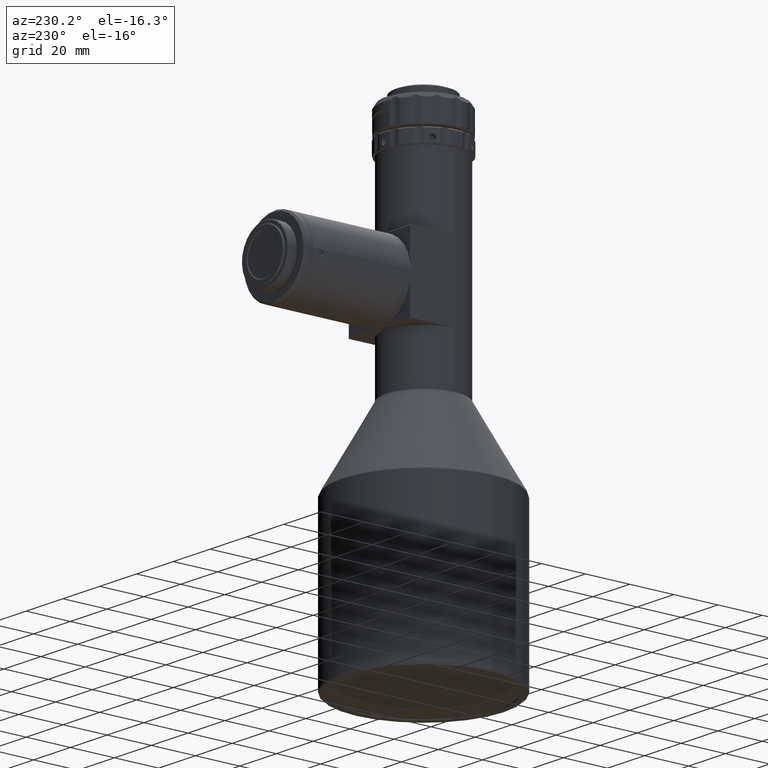
[diagram: clean part render]
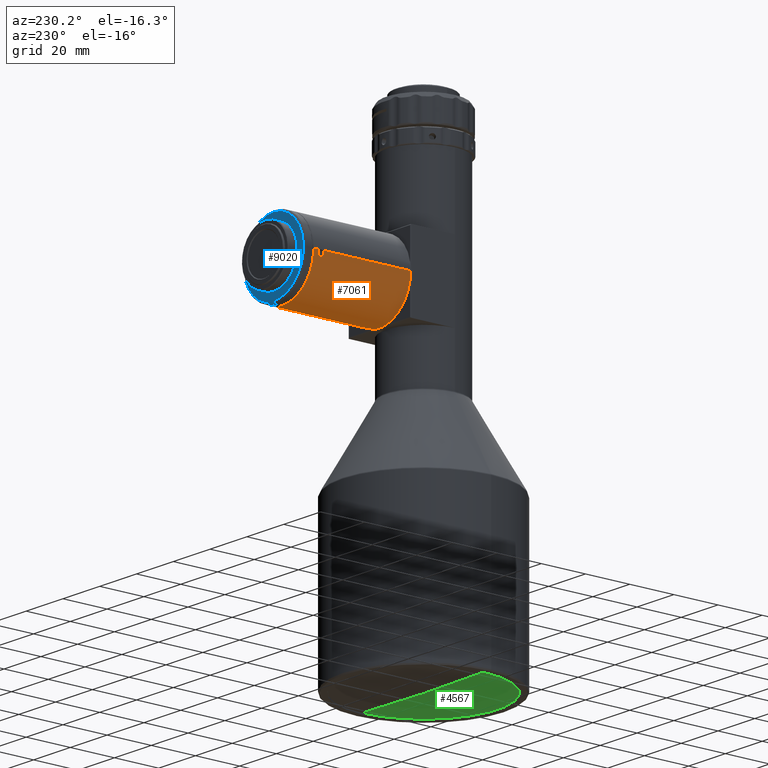
[diagram: same view with three faces highlighted in distinct colors, each labeled with its STEP entity id]
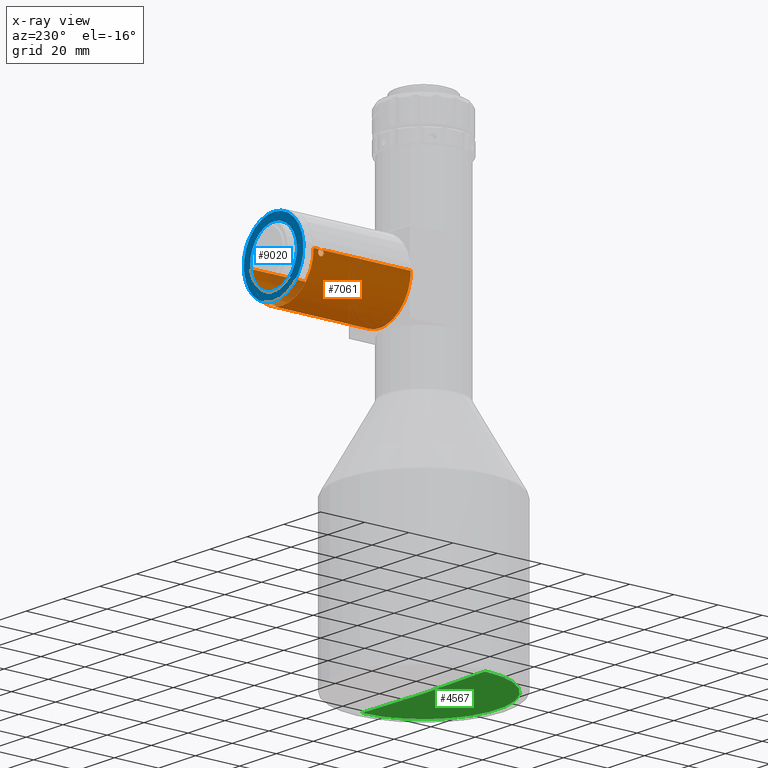
[diagram: x-ray of the same camera — body ghosted, the three highlighted faces saturated]
A machine part, auxiliary view with three faces highlighted in distinct colors.
The next image is the same camera in x-ray (body ghosted, the three faces saturated) — at least one of them is partly hidden behind the body in this view.
Their STEP definitions:

[orange] entity #7061 — the highlighted cylindrical surface (partial cylindrical patch) has radius 17 mm, axis along (-0, -1, -0).
#30 = EDGE_CURVE ( 'NONE', #10299, #2019, #9562, .T. ) ;
#130 = EDGE_CURVE ( 'NONE', #3098, #3145, #10265, .T. ) ;
#163 = CARTESIAN_POINT ( 'NONE',  ( 10.44409753742035600, 60.78860163635985700, 19.51785157957408100 ) ) ;
#166 = ORIENTED_EDGE ( 'NONE', *, *, #9727, .T. ) ;
#220 = CARTESIAN_POINT ( 'NONE',  ( -16.83844321671515200, 60.90231619861911800, 30.59318317727059600 ) ) ;
#673 = CARTESIAN_POINT ( 'NONE',  ( 16.69999999999987100, 20.00000000000028800, 29.75168588359415300 ) ) ;
#755 = B_SPLINE_CURVE_WITH_KNOTS ( 'NONE', 3,
 ( #10082, #2800, #10958, #5631, #1241, #7472, #3029, #3890, #4814, #9230, #2996, #3968, #1358, #10115, #1392, #8337, #1280, #4040, #11036, #10227 ),
 .UNSPECIFIED., .F., .F.,
 ( 4, 2, 2, 2, 2, 2, 2, 2, 2, 4 ),
 ( 0.0000000000000000000, 0.0004886735322580820300, 0.0009773470645161640500, 0.001466020596774246100, 0.001954694129032328100, 0.002443367661290410100, 0.002932041193548492200, 0.003420714725806574200, 0.003665051491935606300, 0.003909388258064638900 ),
 .UNSPECIFIED. ) ;
#864 = CIRCLE ( 'NONE', #3635, 17.00000000000000000 ) ;
#1011 = DIRECTION ( 'NONE',  ( -1.227316859253525200E-016, -1.000000000000000000, -5.319949245483733800E-016 ) ) ;
#1097 = AXIS2_PLACEMENT_3D ( 'NONE', #1327, #8538, #4895 ) ;
#1100 = CARTESIAN_POINT ( 'NONE',  ( -17.00000000000018500, 61.47123799721796900, 32.79792857929201200 ) ) ;
#1178 = EDGE_CURVE ( 'NONE', #11497, #6519, #5920, .T. ) ;
#1202 = CARTESIAN_POINT ( 'NONE',  ( 8.363936404921442900, 60.62544900000001700, 18.13115418546042800 ) ) ;
#1219 = CARTESIAN_POINT ( 'NONE',  ( -16.99831671278808200, 61.66481651704216900, 32.58371411275661700 ) ) ;
#1241 = CARTESIAN_POINT ( 'NONE',  ( 8.582206032756294800, 59.85666945905273900, 18.25619104719068300 ) ) ;
#1278 = CARTESIAN_POINT ( 'NONE',  ( 8.501658297077971900, 61.25544258454164700, 18.20970102550501600 ) ) ;
#1280 = CARTESIAN_POINT ( 'NONE',  ( 10.41231225476375100, 60.30075011707619100, 19.49315348209614000 ) ) ;
#1316 = CARTESIAN_POINT ( 'NONE',  ( 10.24521593220291900, 61.39340508350832700, 19.36484815966855800 ) ) ;
#1327 = CARTESIAN_POINT ( 'NONE',  ( -1.624694592395075500E-013, 11.00000000000029700, 32.93130850271084900 ) ) ;
#1358 = CARTESIAN_POINT ( 'NONE',  ( 10.05834016019300800, 59.62470758801497800, 19.22570905946440300 ) ) ;
#1392 = CARTESIAN_POINT ( 'NONE',  ( 10.31883841723742100, 59.99563988277061100, 19.42110763284640400 ) ) ;
#1397 = EDGE_CURVE ( 'NONE', #9168, #3098, #1462, .T. ) ;
#1410 = CARTESIAN_POINT ( 'NONE',  ( -1.613648740661793200E-013, 20.00000000000029500, 32.93130850271085600 ) ) ;
#1462 = CIRCLE ( 'NONE', #10208, 17.00000000000000000 ) ;
#1466 = VERTEX_POINT ( 'NONE', #4059 ) ;
#1534 = B_SPLINE_CURVE_WITH_KNOTS ( 'NONE', 3,
 ( #11310, #6950, #3383, #1619, #4204, #9606, #10461, #9542, #6994, #8651 ),
 .UNSPECIFIED., .F., .F.,
 ( 4, 2, 2, 2, 4 ),
 ( 0.002583457577589026000, 0.003403748879475404700, 0.004224040181361783300, 0.005044331483248162000, 0.005864622785134540600 ),
 .UNSPECIFIED. ) ;
#1619 = CARTESIAN_POINT ( 'NONE',  ( -16.98046161540724700, 59.36829357606198700, 32.07803068651396200 ) ) ;
#1657 = DIRECTION ( 'NONE',  ( 0.06433384176585757500, 8.163404592832026100E-016, -0.9979284327062966100 ) ) ;
#2019 = VERTEX_POINT ( 'NONE', #9785 ) ;
#2091 = CARTESIAN_POINT ( 'NONE',  ( 10.41822450364994300, 60.95306959857011000, 19.49760115184764300 ) ) ;
#2107 = CARTESIAN_POINT ( 'NONE',  ( -16.83844321671515200, 60.62544900000001000, 30.59318317727059600 ) ) ;
#2129 = CARTESIAN_POINT ( 'NONE',  ( 8.786787601780332600, 61.62029975530740700, 18.37806197782103400 ) ) ;
#2241 = CARTESIAN_POINT ( 'NONE',  ( 10.31931013224922100, 61.25393631298310700, 19.42147011020788800 ) ) ;
#2379 = DIRECTION ( 'NONE',  ( -1.000000000000000000, 2.040851148208008200E-016, 2.857191607491211600E-015 ) ) ;
#2523 = CARTESIAN_POINT ( 'NONE',  ( -17.00000000000016700, 61.23073762227321000, 32.93130850271097600 ) ) ;
#2565 = CYLINDRICAL_SURFACE ( 'NONE', #1097, 17.00000000000000000 ) ;
#2718 = EDGE_CURVE ( 'NONE', #8670, #10299, #4839, .T. ) ;
#2800 = CARTESIAN_POINT ( 'NONE',  ( 8.363936404921442900, 60.46020817463755700, 18.13115418546043100 ) ) ;
#2829 = CARTESIAN_POINT ( 'NONE',  ( -17.00000000000016300, 11.00000000000029800, 32.93130850271089800 ) ) ;
#2958 = ORIENTED_EDGE ( 'NONE', *, *, #8351, .F. ) ;
#2996 = CARTESIAN_POINT ( 'NONE',  ( 9.699887648661720300, 59.40778587403193000, 18.96939198114419200 ) ) ;
#3007 = CARTESIAN_POINT ( 'NONE',  ( -16.85178776744311300, 61.17214327417089900, 30.68500241880037600 ) ) ;
#3029 = CARTESIAN_POINT ( 'NONE',  ( 8.900113832779265300, 59.53301496947038600, 18.44646749811139600 ) ) ;
#3064 = CARTESIAN_POINT ( 'NONE',  ( 8.582530785604328500, 61.39472236956846300, 18.25638033360427700 ) ) ;
#3098 = VERTEX_POINT ( 'NONE', #673 ) ;
#3120 = AXIS2_PLACEMENT_3D ( 'NONE', #6949, #10614, #1657 ) ;
#3145 = VERTEX_POINT ( 'NONE', #6005 ) ;
#3305 = ORIENTED_EDGE ( 'NONE', *, *, #8419, .T. ) ;
#3383 = CARTESIAN_POINT ( 'NONE',  ( -16.99834556377100400, 59.58620168085504800, 32.58431023389746900 ) ) ;
#3403 = FACE_BOUND ( 'NONE', #10827, .T. ) ;
#3447 = CARTESIAN_POINT ( 'NONE',  ( -17.00000000000016700, 60.02016037772669000, 32.93130850271089800 ) ) ;
#3575 = ORIENTED_EDGE ( 'NONE', *, *, #30, .F. ) ;
#3588 = EDGE_CURVE ( 'NONE', #4987, #3145, #6143, .T. ) ;
#3635 = AXIS2_PLACEMENT_3D ( 'NONE', #5517, #1011, #7272 ) ;
#3685 = ORIENTED_EDGE ( 'NONE', *, *, #6839, .T. ) ;
#3740 = DIRECTION ( 'NONE',  ( -1.000000000000000000, 2.040851148208008200E-016, 2.857191607491211600E-015 ) ) ;
#3888 = CARTESIAN_POINT ( 'NONE',  ( 9.701335024671356800, 61.84262286287446400, 18.97039968294829400 ) ) ;
#3890 = CARTESIAN_POINT ( 'NONE',  ( 9.155137178339819200, 59.40834196863500000, 18.60629162974576200 ) ) ;
#3922 = CARTESIAN_POINT ( 'NONE',  ( 9.156701845015401600, 61.84320697637160400, 18.60728014417492200 ) ) ;
#3968 = CARTESIAN_POINT ( 'NONE',  ( 9.947076741225506800, 59.53306046697227300, 19.14440900876998300 ) ) ;
#4040 = CARTESIAN_POINT ( 'NONE',  ( 10.43763097426615600, 60.46097907084376300, 19.51280946243754900 ) ) ;
#4059 = CARTESIAN_POINT ( 'NONE',  ( -16.83844321671515200, 60.62544900000001000, 30.59318317727059600 ) ) ;
#4204 = CARTESIAN_POINT ( 'NONE',  ( -16.96391710131068500, 59.34607776056383000, 31.79240683571985600 ) ) ;
#4329 = ORIENTED_EDGE ( 'NONE', *, *, #7138, .T. ) ;
#4364 = CARTESIAN_POINT ( 'NONE',  ( -1.613648740661793200E-013, 20.00000000000029500, 32.93130850271085600 ) ) ;
#4428 = VERTEX_POINT ( 'NONE', #8976 ) ;
#4715 = CARTESIAN_POINT ( 'NONE',  ( -16.96270775978055700, 61.88231563095511200, 31.79761879208986000 ) ) ;
#4787 = EDGE_CURVE ( 'NONE', #6398, #9168, #8945, .T. ) ;
#4811 = CARTESIAN_POINT ( 'NONE',  ( 8.363936404921441100, 60.79065173880533700, 18.13115418546042100 ) ) ;
#4814 = CARTESIAN_POINT ( 'NONE',  ( 9.293440137676880000, 59.37550762309951600, 18.69548823870270800 ) ) ;
#4839 = LINE ( 'NONE', #2829, #8206 ) ;
#4887 = ORIENTED_EDGE ( 'NONE', *, *, #2718, .F. ) ;
#4895 = DIRECTION ( 'NONE',  ( -1.000000000000000000, 1.020425574104004100E-016, 2.857191607491211600E-015 ) ) ;
#4987 = VERTEX_POINT ( 'NONE', #5834 ) ;
#5069 = CIRCLE ( 'NONE', #11443, 17.00000000000001400 ) ;
#5166 = EDGE_LOOP ( 'NONE', ( #10485, #10846, #6502, #7658, #7546, #2958, #3575, #4887, #4329, #9991, #6160, #3685 ) ) ;
#5186 = DIRECTION ( 'NONE',  ( -1.227316859253475900E-016, -1.000000000000000000, -5.319949245483742700E-016 ) ) ;
#5206 = DIRECTION ( 'NONE',  ( -1.227316859253525200E-016, -1.000000000000000000, -5.319949245483733800E-016 ) ) ;
#5267 = DIRECTION ( 'NONE',  ( -1.227316859253525200E-016, -1.000000000000000000, -5.319949245483733800E-016 ) ) ;
#5347 = CARTESIAN_POINT ( 'NONE',  ( 10.44409753742687200, 60.62544899999952000, 19.51785157957915500 ) ) ;
#5373 = DIRECTION ( 'NONE',  ( -1.227316859253525200E-016, -1.000000000000000000, -5.319949245483733800E-016 ) ) ;
#5470 = CARTESIAN_POINT ( 'NONE',  ( 10.44409753742687200, 60.62544899999952000, 19.51785157957915500 ) ) ;
#5482 = FACE_OUTER_BOUND ( 'NONE', #5166, .T. ) ;
#5517 = CARTESIAN_POINT ( 'NONE',  ( -1.613648740661793200E-013, 20.00000000000029500, 32.93130850271085600 ) ) ;
#5627 = CARTESIAN_POINT ( 'NONE',  ( 8.731546721219636700, 61.56756811586392100, 18.34489599933200700 ) ) ;
#5631 = CARTESIAN_POINT ( 'NONE',  ( 8.501591194862584200, 59.99531131273245400, 18.20966101143116200 ) ) ;
#5834 = CARTESIAN_POINT ( 'NONE',  ( 16.99999999999982900, 63.92544900000000800, 32.93130850271082700 ) ) ;
#5920 = LINE ( 'NONE', #7371, #9153 ) ;
#6005 = CARTESIAN_POINT ( 'NONE',  ( 16.99999999999983700, 20.00000000000029100, 32.93130850271082700 ) ) ;
#6143 = LINE ( 'NONE', #8035, #8534 ) ;
#6160 = ORIENTED_EDGE ( 'NONE', *, *, #1178, .F. ) ;
#6211 = VERTEX_POINT ( 'NONE', #11476 ) ;
#6250 = AXIS2_PLACEMENT_3D ( 'NONE', #8860, #5206, #10621 ) ;
#6387 = EDGE_CURVE ( 'NONE', #1466, #6519, #8051, .T. ) ;
#6393 = DIRECTION ( 'NONE',  ( -1.227316859253525200E-016, -1.000000000000000000, -5.319949245483733800E-016 ) ) ;
#6398 = VERTEX_POINT ( 'NONE', #10857 ) ;
#6502 = ORIENTED_EDGE ( 'NONE', *, *, #130, .F. ) ;
#6519 = VERTEX_POINT ( 'NONE', #2523 ) ;
#6529 = CARTESIAN_POINT ( 'NONE',  ( 10.06024531682138200, 61.62402807601709000, 19.22712082513662300 ) ) ;
#6839 = EDGE_CURVE ( 'NONE', #11497, #4428, #5069, .T. ) ;
#6875 = AXIS2_PLACEMENT_3D ( 'NONE', #7178, #5267, #10720 ) ;
#6905 = VERTEX_POINT ( 'NONE', #5347 ) ;
#6949 = CARTESIAN_POINT ( 'NONE',  ( -1.697352264374592000E-013, 63.92544900000000800, 32.93130850271087700 ) ) ;
#6950 = CARTESIAN_POINT ( 'NONE',  ( -17.00000000000016700, 59.77946406609437700, 32.79781991409588200 ) ) ;
#6980 = DIRECTION ( 'NONE',  ( 0.06433384176585757500, 8.163404592832026100E-016, -0.9979284327062966100 ) ) ;
#6994 = CARTESIAN_POINT ( 'NONE',  ( -16.83844321671514900, 60.34837738146897800, 30.59318317727060000 ) ) ;
#7061 = ADVANCED_FACE ( 'NONE', ( #3403, #5482 ), #2565, .T. ) ;
#7138 = EDGE_CURVE ( 'NONE', #8670, #1466, #1534, .T. ) ;
#7178 = CARTESIAN_POINT ( 'NONE',  ( -1.613648740661793200E-013, 20.00000000000029500, 32.93130850271085600 ) ) ;
#7220 = DIRECTION ( 'NONE',  ( -1.227316859253525200E-016, -1.000000000000000000, -5.319949245483733800E-016 ) ) ;
#7272 = DIRECTION ( 'NONE',  ( -1.000000000000000000, 2.040851148208008200E-016, 2.857191607491211600E-015 ) ) ;
#7371 = CARTESIAN_POINT ( 'NONE',  ( -17.00000000000016300, 11.00000000000029800, 32.93130850271089800 ) ) ;
#7472 = CARTESIAN_POINT ( 'NONE',  ( 8.780757687044138400, 59.62613269018810100, 18.37412377614348800 ) ) ;
#7501 = CARTESIAN_POINT ( 'NONE',  ( 8.902890104129959100, 61.71084259583320600, 18.44879599393658500 ) ) ;
#7546 = ORIENTED_EDGE ( 'NONE', *, *, #4787, .F. ) ;
#7658 = ORIENTED_EDGE ( 'NONE', *, *, #1397, .F. ) ;
#7669 = AXIS2_PLACEMENT_3D ( 'NONE', #4364, #10774, #3740 ) ;
#8035 = CARTESIAN_POINT ( 'NONE',  ( 16.99999999999983700, 11.00000000000029500, 32.93130850271080600 ) ) ;
#8051 = B_SPLINE_CURVE_WITH_KNOTS ( 'NONE', 3,
 ( #2107, #220, #3007, #9244, #10126, #9102, #4715, #8200, #10932, #1219, #1100, #9212 ),
 .UNSPECIFIED., .F., .F.,
 ( 4, 2, 2, 2, 2, 4 ),
 ( 0.005864622785134540600, 0.006684308886543948400, 0.007503994987953356200, 0.007913838038658048400, 0.008323681089362738900, 0.009143367190772140600 ),
 .UNSPECIFIED. ) ;
#8200 = CARTESIAN_POINT ( 'NONE',  ( -16.97875289572039000, 61.86108951075983200, 32.07069418156935800 ) ) ;
#8206 = VECTOR ( 'NONE', #7220, 1000.000000000000000 ) ;
#8337 = CARTESIAN_POINT ( 'NONE',  ( 10.39358275257777600, 60.22281953436888100, 19.47863493863445700 ) ) ;
#8351 = EDGE_CURVE ( 'NONE', #2019, #6398, #864, .T. ) ;
#8358 = CIRCLE ( 'NONE', #3120, 17.00000000000001400 ) ;
#8373 = CARTESIAN_POINT ( 'NONE',  ( 8.392984548530341400, 60.95477533474809200, 18.14747507286835700 ) ) ;
#8419 = EDGE_CURVE ( 'NONE', #6905, #6211, #11518, .T. ) ;
#8534 = VECTOR ( 'NONE', #5373, 1000.000000000000000 ) ;
#8538 = DIRECTION ( 'NONE',  ( -1.227316859253525200E-016, -1.000000000000000000, -5.319949245483733800E-016 ) ) ;
#8651 = CARTESIAN_POINT ( 'NONE',  ( -16.83844321671515200, 60.62544900000001000, 30.59318317727059600 ) ) ;
#8670 = VERTEX_POINT ( 'NONE', #3447 ) ;
#8860 = CARTESIAN_POINT ( 'NONE',  ( -1.613648740661793200E-013, 20.00000000000029500, 32.93130850271085600 ) ) ;
#8945 = CIRCLE ( 'NONE', #6875, 17.00000000000000000 ) ;
#8976 = CARTESIAN_POINT ( 'NONE',  ( 1.093675310019410500, 63.92544900000002200, 15.96652514670381400 ) ) ;
#9102 = CARTESIAN_POINT ( 'NONE',  ( -16.95274245928003200, 61.87000847563798800, 31.65760703550370900 ) ) ;
#9153 = VECTOR ( 'NONE', #6393, 1000.000000000000000 ) ;
#9168 = VERTEX_POINT ( 'NONE', #10471 ) ;
#9212 = CARTESIAN_POINT ( 'NONE',  ( -17.00000000000016700, 61.23073762227321000, 32.93130850271097600 ) ) ;
#9230 = CARTESIAN_POINT ( 'NONE',  ( 9.564897861513523800, 59.37539053790529700, 18.87643969931953300 ) ) ;
#9244 = CARTESIAN_POINT ( 'NONE',  ( -16.89316852164464700, 61.60878775204599800, 31.02094223393602200 ) ) ;
#9266 = CARTESIAN_POINT ( 'NONE',  ( 9.293091561167104300, 61.87558106597546700, 18.69523901605358400 ) ) ;
#9303 = CARTESIAN_POINT ( 'NONE',  ( 9.567662998778271100, 61.87531612833794300, 18.87829993034534200 ) ) ;
#9400 = DIRECTION ( 'NONE',  ( -1.227316859253525200E-016, -1.000000000000000000, -5.319949245483733800E-016 ) ) ;
#9542 = CARTESIAN_POINT ( 'NONE',  ( -16.85176668794889600, 60.07882432382153600, 30.68480553183014700 ) ) ;
#9562 = CIRCLE ( 'NONE', #6250, 17.00000000000000000 ) ;
#9606 = CARTESIAN_POINT ( 'NONE',  ( -16.91967674645269100, 59.48430292874279200, 31.25914845571657000 ) ) ;
#9727 = EDGE_CURVE ( 'NONE', #6211, #6905, #755, .T. ) ;
#9785 = CARTESIAN_POINT ( 'NONE',  ( -16.70000000000019500, 20.00000000000029500, 29.75168588359412100 ) ) ;
#9991 = ORIENTED_EDGE ( 'NONE', *, *, #6387, .T. ) ;
#10082 = CARTESIAN_POINT ( 'NONE',  ( 8.363936404921442900, 60.62544900000001700, 18.13115418546042800 ) ) ;
#10115 = CARTESIAN_POINT ( 'NONE',  ( 10.24585370391781900, 59.85807650143593900, 19.36531628854596600 ) ) ;
#10126 = CARTESIAN_POINT ( 'NONE',  ( -16.91963170533108900, 61.76624818591756100, 31.25881568392065200 ) ) ;
#10153 = CARTESIAN_POINT ( 'NONE',  ( 8.964042989502921400, 61.74919257465575800, 18.48652821514665200 ) ) ;
#10208 = AXIS2_PLACEMENT_3D ( 'NONE', #1410, #9400, #2379 ) ;
#10223 = CARTESIAN_POINT ( 'NONE',  ( 9.948200445820038600, 61.71702122471089800, 19.14522188523941200 ) ) ;
#10227 = CARTESIAN_POINT ( 'NONE',  ( 10.44409753742687200, 60.62544899999952000, 19.51785157957915500 ) ) ;
#10265 = CIRCLE ( 'NONE', #7669, 17.00000000000000000 ) ;
#10299 = VERTEX_POINT ( 'NONE', #10473 ) ;
#10461 = CARTESIAN_POINT ( 'NONE',  ( -16.89326677677929200, 59.64122658692307500, 31.02176570093732600 ) ) ;
#10471 = CARTESIAN_POINT ( 'NONE',  ( 3.179622619116717600, 20.00000000000030200, 16.23130850271085300 ) ) ;
#10473 = CARTESIAN_POINT ( 'NONE',  ( -17.00000000000016300, 20.00000000000029800, 32.93130850271092000 ) ) ;
#10485 = ORIENTED_EDGE ( 'NONE', *, *, #11088, .T. ) ;
#10525 = CARTESIAN_POINT ( 'NONE',  ( -1.697352264374592000E-013, 63.92544900000000800, 32.93130850271087700 ) ) ;
#10576 = CARTESIAN_POINT ( 'NONE',  ( -17.00000000000017100, 63.92544900000000800, 32.93130850271092000 ) ) ;
#10614 = DIRECTION ( 'NONE',  ( -1.227316859253475900E-016, -1.000000000000000000, -5.319949245483742700E-016 ) ) ;
#10621 = DIRECTION ( 'NONE',  ( -1.000000000000000000, 2.040851148208008200E-016, 2.857191607491211600E-015 ) ) ;
#10720 = DIRECTION ( 'NONE',  ( -1.000000000000000000, 2.040851148208008200E-016, 2.857191607491211600E-015 ) ) ;
#10774 = DIRECTION ( 'NONE',  ( -1.227316859253525200E-016, -1.000000000000000000, -5.319949245483733800E-016 ) ) ;
#10827 = EDGE_LOOP ( 'NONE', ( #166, #3305 ) ) ;
#10846 = ORIENTED_EDGE ( 'NONE', *, *, #3588, .T. ) ;
#10857 = CARTESIAN_POINT ( 'NONE',  ( -3.179622619117044000, 20.00000000000030200, 16.23130850271085300 ) ) ;
#10932 = CARTESIAN_POINT ( 'NONE',  ( -16.98497479030535100, 61.82772866661249400, 32.20568490556112800 ) ) ;
#10958 = CARTESIAN_POINT ( 'NONE',  ( 8.392401861937235800, 60.29806650260233900, 18.14714303117276700 ) ) ;
#11036 = CARTESIAN_POINT ( 'NONE',  ( 10.44409753742020200, 60.54385387485981300, 19.51785157957396100 ) ) ;
#11088 = EDGE_CURVE ( 'NONE', #4428, #4987, #8358, .T. ) ;
#11310 = CARTESIAN_POINT ( 'NONE',  ( -17.00000000000016700, 60.02016037772669000, 32.93130850271089800 ) ) ;
#11443 = AXIS2_PLACEMENT_3D ( 'NONE', #10525, #5186, #6980 ) ;
#11476 = CARTESIAN_POINT ( 'NONE',  ( 8.363936404921442900, 60.62544900000001700, 18.13115418546042800 ) ) ;
#11497 = VERTEX_POINT ( 'NONE', #10576 ) ;
#11518 = B_SPLINE_CURVE_WITH_KNOTS ( 'NONE', 3,
 ( #5470, #163, #2091, #2241, #1316, #6529, #10223, #3888, #9303, #9266, #3922, #10153, #7501, #2129, #5627, #3064, #1278, #8373, #4811, #1202 ),
 .UNSPECIFIED., .F., .F.,
 ( 4, 2, 2, 2, 2, 2, 2, 2, 2, 4 ),
 ( 0.003909388258064638900, 0.004397949155370915700, 0.004886510052677193500, 0.005375070949983470400, 0.005863631847289748100, 0.006352192744596025000, 0.006596473193249161700, 0.006840753641902299300, 0.007329314539208559700, 0.007817875436514819300 ),
 .UNSPECIFIED. ) ;

[blue] entity #9020 — the highlighted planar face has unit normal (-0, -1, -0).
#223 = AXIS2_PLACEMENT_3D ( 'NONE', #10138, #3090, #11131 ) ;
#1115 = AXIS2_PLACEMENT_3D ( 'NONE', #7513, #2183, #1177 ) ;
#1177 = DIRECTION ( 'NONE',  ( 8.881784197001244400E-016, 0.0000000000000000000, -1.000000000000000000 ) ) ;
#1538 = DIRECTION ( 'NONE',  ( -0.03000805206256190400, -8.566535683836085000E-016, 0.9995496570012970500 ) ) ;
#2018 = CARTESIAN_POINT ( 'NONE',  ( -1.554829029116795600E-013, 67.92544899999970200, 32.93130850271087700 ) ) ;
#2105 = FACE_BOUND ( 'NONE', #10383, .T. ) ;
#2183 = DIRECTION ( 'NONE',  ( 1.227316859253471500E-016, 1.000000000000000000, 5.319949245483724900E-016 ) ) ;
#2339 = EDGE_LOOP ( 'NONE', ( #8166, #3053 ) ) ;
#3053 = ORIENTED_EDGE ( 'NONE', *, *, #7367, .T. ) ;
#3090 = DIRECTION ( 'NONE',  ( -1.227316859253471700E-016, -1.000000000000000000, -5.319949245483721000E-016 ) ) ;
#3614 = CARTESIAN_POINT ( 'NONE',  ( -0.8170397904265589400, 67.92544899999970200, 45.60499959808085900 ) ) ;
#3673 = CIRCLE ( 'NONE', #7124, 16.19999999999999900 ) ;
#4321 = DIRECTION ( 'NONE',  ( 1.227316859253471500E-016, 1.000000000000000000, 5.319949245483724900E-016 ) ) ;
#4476 = FACE_OUTER_BOUND ( 'NONE', #2339, .T. ) ;
#5081 = DIRECTION ( 'NONE',  ( 1.227316859253471500E-016, 1.000000000000000000, 5.319949245483724900E-016 ) ) ;
#5386 = VERTEX_POINT ( 'NONE', #9232 ) ;
#6334 = DIRECTION ( 'NONE',  ( 1.227316859253471500E-016, 1.000000000000000000, 5.319949245483724900E-016 ) ) ;
#6383 = CIRCLE ( 'NONE', #9471, 12.69999999999999900 ) ;
#6952 = DIRECTION ( 'NONE',  ( 0.0000000000000000000, 0.0000000000000000000, -1.000000000000000000 ) ) ;
#7048 = VERTEX_POINT ( 'NONE', #8459 ) ;
#7124 = AXIS2_PLACEMENT_3D ( 'NONE', #2018, #6334, #8179 ) ;
#7361 = CIRCLE ( 'NONE', #1115, 12.69999999999999900 ) ;
#7367 = EDGE_CURVE ( 'NONE', #8877, #5386, #3673, .T. ) ;
#7513 = CARTESIAN_POINT ( 'NONE',  ( -1.679459522840876000E-013, 67.92544899999970200, 32.93130850271088400 ) ) ;
#7527 = PLANE ( 'NONE',  #223 ) ;
#8166 = ORIENTED_EDGE ( 'NONE', *, *, #9845, .T. ) ;
#8179 = DIRECTION ( 'NONE',  ( -0.03000805206256190400, -8.566535683836085000E-016, 0.9995496570012970500 ) ) ;
#8459 = CARTESIAN_POINT ( 'NONE',  ( 0.8170397904262251000, 67.92544899999970200, 20.25761740734092000 ) ) ;
#8877 = VERTEX_POINT ( 'NONE', #9186 ) ;
#8944 = CIRCLE ( 'NONE', #9116, 16.19999999999999900 ) ;
#9020 = ADVANCED_FACE ( 'NONE', ( #2105, #4476 ), #7527, .F. ) ;
#9116 = AXIS2_PLACEMENT_3D ( 'NONE', #10414, #5081, #1538 ) ;
#9167 = ORIENTED_EDGE ( 'NONE', *, *, #11521, .F. ) ;
#9186 = CARTESIAN_POINT ( 'NONE',  ( 0.4861304434133454400, 67.92544899999971600, 16.73860405928986600 ) ) ;
#9198 = ORIENTED_EDGE ( 'NONE', *, *, #11305, .F. ) ;
#9232 = CARTESIAN_POINT ( 'NONE',  ( -0.4861304434136580200, 67.92544899999968800, 49.12401294613189200 ) ) ;
#9471 = AXIS2_PLACEMENT_3D ( 'NONE', #11386, #4321, #6952 ) ;
#9845 = EDGE_CURVE ( 'NONE', #5386, #8877, #8944, .T. ) ;
#10138 = CARTESIAN_POINT ( 'NONE',  ( -12.39441574681623800, 67.92544899999970200, 32.55920865713511600 ) ) ;
#10383 = EDGE_LOOP ( 'NONE', ( #9198, #9167 ) ) ;
#10391 = VERTEX_POINT ( 'NONE', #3614 ) ;
#10414 = CARTESIAN_POINT ( 'NONE',  ( -1.554829029116795600E-013, 67.92544899999970200, 32.93130850271087700 ) ) ;
#11131 = DIRECTION ( 'NONE',  ( -0.03000805206256190000, -5.280724055377823400E-016, 0.9995496570012970500 ) ) ;
#11305 = EDGE_CURVE ( 'NONE', #10391, #7048, #7361, .T. ) ;
#11386 = CARTESIAN_POINT ( 'NONE',  ( -1.679459522840876000E-013, 67.92544899999970200, 32.93130850271088400 ) ) ;
#11521 = EDGE_CURVE ( 'NONE', #7048, #10391, #6383, .T. ) ;

[green] entity #4567 — the highlighted conical surface has half-angle 89.173 deg.
#719 = VERTEX_POINT ( 'NONE', #8177 ) ;
#1491 = CARTESIAN_POINT ( 'NONE',  ( 33.50000000000000000, 0.0000000000000000000, -112.2848497884218400 ) ) ;
#2342 = LINE ( 'NONE', #5047, #7074 ) ;
#2503 = CONICAL_SURFACE ( 'NONE', #5381, 34.61876000564094400, 1.556354294862285900 ) ;
#3002 = VERTEX_POINT ( 'NONE', #1491 ) ;
#3377 = ORIENTED_EDGE ( 'NONE', *, *, #11423, .T. ) ;
#3607 = DIRECTION ( 'NONE',  ( -0.9998957156694160400, 1.224519087675702200E-016, 0.01444152990324291300 ) ) ;
#4567 = ADVANCED_FACE ( 'NONE', ( #10998 ), #2503, .T. ) ;
#4588 = CARTESIAN_POINT ( 'NONE',  ( -33.50000000000000000, 6.012800330548973500E-014, -112.2848497884218400 ) ) ;
#4850 = EDGE_CURVE ( 'NONE', #719, #5252, #6823, .T. ) ;
#5047 = CARTESIAN_POINT ( 'NONE',  ( 34.61876000564094400, 0.0000000000000000000, -112.2686914972892400 ) ) ;
#5084 = DIRECTION ( 'NONE',  ( 1.000000000000000000, 0.0000000000000000000, 0.0000000000000000000 ) ) ;
#5252 = VERTEX_POINT ( 'NONE', #4588 ) ;
#5381 = AXIS2_PLACEMENT_3D ( 'NONE', #5781, #11188, #11148 ) ;
#5525 = EDGE_CURVE ( 'NONE', #5252, #3002, #7933, .T. ) ;
#5781 = CARTESIAN_POINT ( 'NONE',  ( 0.0000000000000000000, 0.0000000000000000000, -112.2686914972892400 ) ) ;
#6823 = LINE ( 'NONE', #9803, #9612 ) ;
#7074 = VECTOR ( 'NONE', #8580, 1000.000000000000000 ) ;
#7853 = ORIENTED_EDGE ( 'NONE', *, *, #5525, .F. ) ;
#7933 = CIRCLE ( 'NONE', #10615, 33.50000000000000000 ) ;
#8177 = CARTESIAN_POINT ( 'NONE',  ( 0.0000000000000000000, 4.857225732735059900E-014, -112.7686914972891500 ) ) ;
#8580 = DIRECTION ( 'NONE',  ( 0.9998957156694160400, 0.0000000000000000000, 0.01444152990324291300 ) ) ;
#8863 = ORIENTED_EDGE ( 'NONE', *, *, #4850, .F. ) ;
#9612 = VECTOR ( 'NONE', #3607, 1000.000000000000000 ) ;
#9643 = DIRECTION ( 'NONE',  ( -0.0000000000000000000, -0.0000000000000000000, 1.000000000000000000 ) ) ;
#9803 = CARTESIAN_POINT ( 'NONE',  ( -34.61876000564094400, 4.239575363135858800E-015, -112.2686914972892400 ) ) ;
#10615 = AXIS2_PLACEMENT_3D ( 'NONE', #11413, #9643, #5084 ) ;
#10998 = FACE_OUTER_BOUND ( 'NONE', #11216, .T. ) ;
#11148 = DIRECTION ( 'NONE',  ( 1.000000000000000000, 0.0000000000000000000, 0.0000000000000000000 ) ) ;
#11188 = DIRECTION ( 'NONE',  ( -0.0000000000000000000, -0.0000000000000000000, 1.000000000000000000 ) ) ;
#11216 = EDGE_LOOP ( 'NONE', ( #8863, #3377, #7853 ) ) ;
#11413 = CARTESIAN_POINT ( 'NONE',  ( 0.0000000000000000000, 0.0000000000000000000, -112.2848497884218400 ) ) ;
#11423 = EDGE_CURVE ( 'NONE', #719, #3002, #2342, .T. ) ;